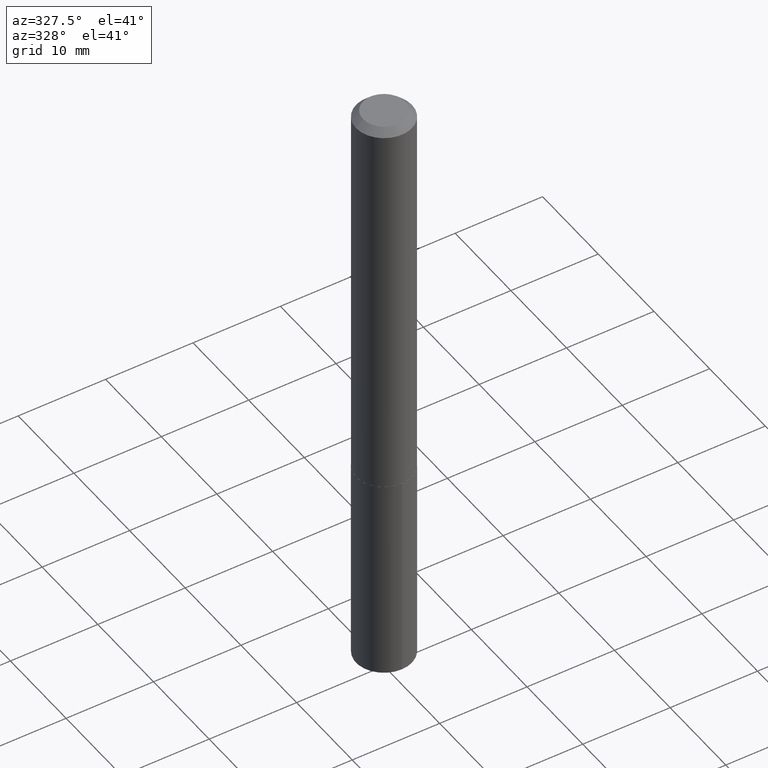
[diagram: clean part render]
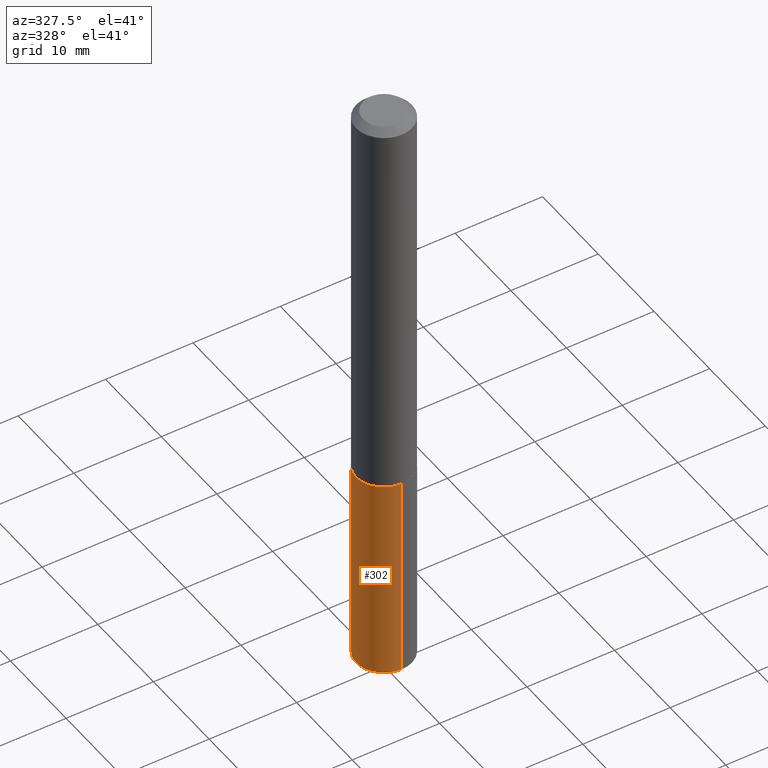
[diagram: same view with one face highlighted and labeled with its STEP entity id]
A machine part, auxiliary view. The second image highlights one B-rep face of the part: STEP entity #302.
In plain terms, the highlighted cylindrical surface (edge-blend (fillet) strip) has radius 3.2004 mm, axis along (-0, 0, 1).
Its self-contained STEP definition (entity closure, byte-faithful):
#6 = CARTESIAN_POINT ( 'NONE',  ( 8.952838470577930965E-16, 0.1259999999999937559, -1.787400000000000766 ) ) ;
#9 = CARTESIAN_POINT ( 'NONE',  ( 8.952838470577698251E-16, 0.1259999999999937559, -1.787400000000000766 ) ) ;
#30 = ORIENTED_EDGE ( 'NONE', *, *, #182, .T. ) ;
#36 = CARTESIAN_POINT ( 'NONE',  ( 6.657053654188704895E-29, -9.504081902360058107E-15, -2.722138401753678494 ) ) ;
#46 = FACE_OUTER_BOUND ( 'NONE', #106, .T. ) ;
#48 = VERTEX_POINT ( 'NONE', #198 ) ;
#49 = CIRCLE ( 'NONE', #63, 0.1260000000000000009 ) ;
#60 = LINE ( 'NONE', #175, #258 ) ;
#63 = AXIS2_PLACEMENT_3D ( 'NONE', #36, #65, #180 ) ;
#65 = DIRECTION ( 'NONE',  ( -2.445628323095046715E-29, 3.491252901549015509E-15, 1.000000000000000000 ) ) ;
#66 = DIRECTION ( 'NONE',  ( -2.445628323095046434E-29, 3.491252901549015115E-15, 1.000000000000000000 ) ) ;
#78 = EDGE_CURVE ( 'NONE', #144, #48, #49, .T. ) ;
#80 = VECTOR ( 'NONE', #360, 39.37007874015748143 ) ;
#104 = CARTESIAN_POINT ( 'NONE',  ( 4.371030944175314115E-29, -6.240673745048238660E-15, -1.787400000000000100 ) ) ;
#106 = EDGE_LOOP ( 'NONE', ( #166, #139, #30, #259 ) ) ;
#114 = EDGE_CURVE ( 'NONE', #144, #116, #236, .T. ) ;
#116 = VERTEX_POINT ( 'NONE', #6 ) ;
#139 = ORIENTED_EDGE ( 'NONE', *, *, #78, .T. ) ;
#144 = VERTEX_POINT ( 'NONE', #301 ) ;
#159 = DIRECTION ( 'NONE',  ( -6.982962677686265922E-15, -1.000000000000000000, 4.336266656609941617E-15 ) ) ;
#166 = ORIENTED_EDGE ( 'NONE', *, *, #114, .F. ) ;
#172 = VERTEX_POINT ( 'NONE', #303 ) ;
#175 = CARTESIAN_POINT ( 'NONE',  ( -8.798532973884258671E-16, -0.1260000000000062459, -1.787399999999999656 ) ) ;
#180 = DIRECTION ( 'NONE',  ( -6.982962677686265922E-15, -1.000000000000000000, 4.336266656609941617E-15 ) ) ;
#182 = EDGE_CURVE ( 'NONE', #48, #172, #60, .T. ) ;
#186 = AXIS2_PLACEMENT_3D ( 'NONE', #104, #218, #214 ) ;
#198 = CARTESIAN_POINT ( 'NONE',  ( -8.798532973884031874E-16, -0.1260000000000095766, -2.722138401753678050 ) ) ;
#214 = DIRECTION ( 'NONE',  ( -6.982962677686265922E-15, -1.000000000000000000, 4.336266656609941617E-15 ) ) ;
#218 = DIRECTION ( 'NONE',  ( -2.445628323095046715E-29, 3.491252901549015509E-15, 1.000000000000000000 ) ) ;
#236 = LINE ( 'NONE', #9, #80 ) ;
#246 = CYLINDRICAL_SURFACE ( 'NONE', #186, 0.1260000000000000009 ) ;
#258 = VECTOR ( 'NONE', #66, 39.37007874015748143 ) ;
#259 = ORIENTED_EDGE ( 'NONE', *, *, #390, .F. ) ;
#279 = CARTESIAN_POINT ( 'NONE',  ( 4.371030944175314115E-29, -6.240673745048238660E-15, -1.787400000000000100 ) ) ;
#301 = CARTESIAN_POINT ( 'NONE',  ( 8.952838470577932937E-16, 0.1259999999999905362, -2.722138401753679382 ) ) ;
#302 = ADVANCED_FACE ( 'NONE', ( #46 ), #246, .T. ) ;
#303 = CARTESIAN_POINT ( 'NONE',  ( -8.798532973884258671E-16, -0.1260000000000062459, -1.787399999999999656 ) ) ;
#315 = CIRCLE ( 'NONE', #375, 0.1260000000000000009 ) ;
#340 = DIRECTION ( 'NONE',  ( -2.445628323095046715E-29, 3.491252901549015509E-15, 1.000000000000000000 ) ) ;
#360 = DIRECTION ( 'NONE',  ( -2.445628323095046434E-29, 3.491252901549015115E-15, 1.000000000000000000 ) ) ;
#375 = AXIS2_PLACEMENT_3D ( 'NONE', #279, #340, #159 ) ;
#390 = EDGE_CURVE ( 'NONE', #116, #172, #315, .T. ) ;